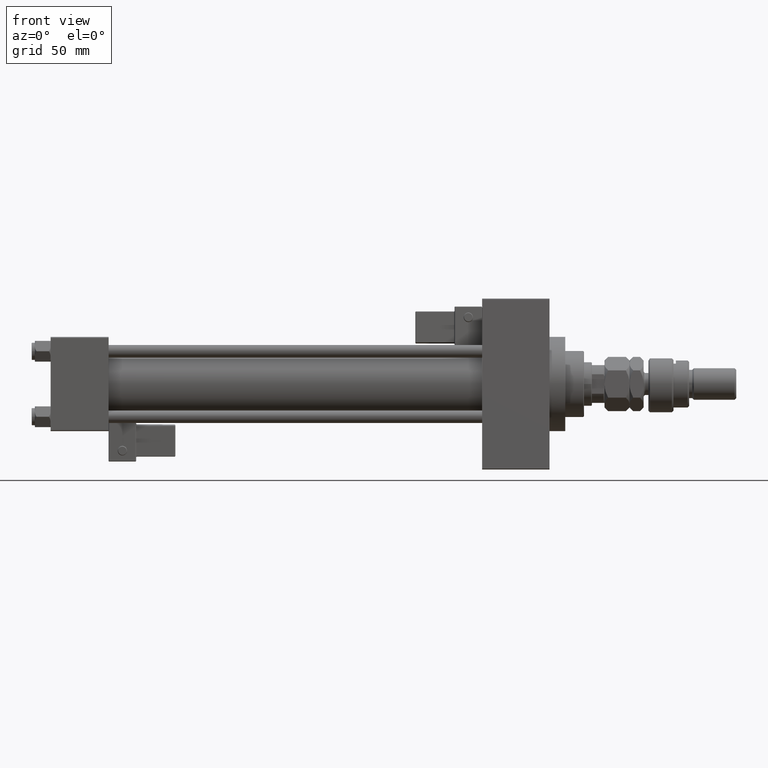
[diagram: clean part render]
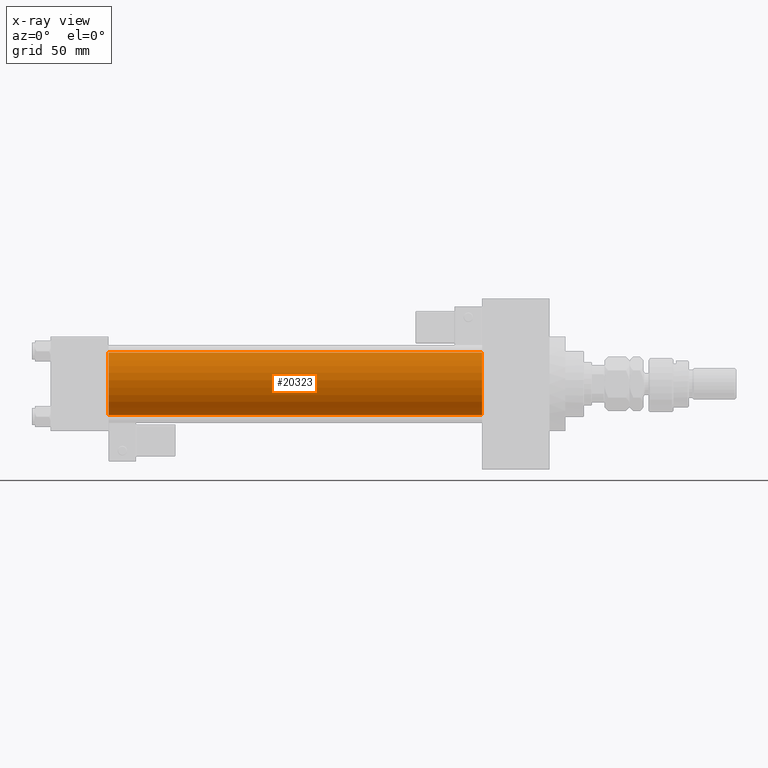
[diagram: x-ray — body ghosted, one internal face saturated and labeled with its STEP entity id]
A machine part, front view, then the same camera in x-ray: the body is ghosted and one INTERNAL B-rep face — a face not visible from any outside direction — is saturated and labeled: STEP entity #20323.
In plain terms, the highlighted cylindrical surface (edge-blend (fillet) strip) has radius 20 mm, axis along (-1, -0, -0).
Its self-contained STEP definition (entity closure, byte-faithful):
#513 = DIRECTION ( 'NONE',  ( 0.000000000000000000, 0.000000000000000000, -1.000000000000000000 ) ) ;
#2042 = VECTOR ( 'NONE', #23881, 1000.000000000000000 ) ;
#4111 = ORIENTED_EDGE ( 'NONE', *, *, #17319, .F. ) ;
#5649 = DIRECTION ( 'NONE',  ( -1.000000000000000000, -0.000000000000000000, -0.000000000000000000 ) ) ;
#7567 = VERTEX_POINT ( 'NONE', #19151 ) ;
#7914 = CARTESIAN_POINT ( 'NONE',  ( 37.00000000000000000, -1.527916156705042519E-16, -20.00000000000000000 ) ) ;
#8869 = CARTESIAN_POINT ( 'NONE',  ( 274.9999999999999432, -1.527916156705042519E-16, -20.00000000000000000 ) ) ;
#8900 = DIRECTION ( 'NONE',  ( 1.000000000000000000, 0.000000000000000000, 0.000000000000000000 ) ) ;
#9616 = EDGE_LOOP ( 'NONE', ( #34664, #23915, #16744, #4111 ) ) ;
#11362 = CARTESIAN_POINT ( 'NONE',  ( 274.9999999999999432, -1.527916156705042519E-16, -20.00000000000000000 ) ) ;
#11471 = AXIS2_PLACEMENT_3D ( 'NONE', #30118, #5649, #38087 ) ;
#15145 = CARTESIAN_POINT ( 'NONE',  ( 274.9999999999999432, -2.602085213965210642E-15, 20.00000000000000000 ) ) ;
#16744 = ORIENTED_EDGE ( 'NONE', *, *, #27274, .F. ) ;
#17319 = EDGE_CURVE ( 'NONE', #7567, #45956, #52597, .T. ) ;
#19151 = CARTESIAN_POINT ( 'NONE',  ( 274.9999999999999432, -2.602085213965210642E-15, 20.00000000000000000 ) ) ;
#20323 = ADVANCED_FACE ( 'NONE', ( #25868 ), #50569, .F. ) ;
#21359 = EDGE_CURVE ( 'NONE', #7567, #50164, #22593, .T. ) ;
#22493 = CARTESIAN_POINT ( 'NONE',  ( 37.00000000000000000, -2.602085213965210642E-15, 20.00000000000000000 ) ) ;
#22593 = CIRCLE ( 'NONE', #51437, 20.00000000000000000 ) ;
#23881 = DIRECTION ( 'NONE',  ( -1.000000000000000000, -0.000000000000000000, -0.000000000000000000 ) ) ;
#23915 = ORIENTED_EDGE ( 'NONE', *, *, #52481, .T. ) ;
#25868 = FACE_OUTER_BOUND ( 'NONE', #9616, .T. ) ;
#27274 = EDGE_CURVE ( 'NONE', #45956, #30477, #41621, .T. ) ;
#28124 = LINE ( 'NONE', #11362, #2042 ) ;
#30118 = CARTESIAN_POINT ( 'NONE',  ( 274.9999999999999432, -2.602085213965210642E-15, 0.000000000000000000 ) ) ;
#30477 = VERTEX_POINT ( 'NONE', #7914 ) ;
#30597 = AXIS2_PLACEMENT_3D ( 'NONE', #37192, #36413, #513 ) ;
#32752 = VECTOR ( 'NONE', #44100, 1000.000000000000000 ) ;
#34664 = ORIENTED_EDGE ( 'NONE', *, *, #21359, .T. ) ;
#36413 = DIRECTION ( 'NONE',  ( 1.000000000000000000, 0.000000000000000000, 0.000000000000000000 ) ) ;
#37192 = CARTESIAN_POINT ( 'NONE',  ( 37.00000000000000000, -2.602085213965210642E-15, 0.000000000000000000 ) ) ;
#37613 = DIRECTION ( 'NONE',  ( 0.000000000000000000, 0.000000000000000000, -1.000000000000000000 ) ) ;
#38087 = DIRECTION ( 'NONE',  ( 0.000000000000000000, 0.000000000000000000, 1.000000000000000000 ) ) ;
#41621 = CIRCLE ( 'NONE', #30597, 20.00000000000000000 ) ;
#44100 = DIRECTION ( 'NONE',  ( -1.000000000000000000, -0.000000000000000000, -0.000000000000000000 ) ) ;
#45323 = CARTESIAN_POINT ( 'NONE',  ( 274.9999999999999432, -2.602085213965210642E-15, 0.000000000000000000 ) ) ;
#45956 = VERTEX_POINT ( 'NONE', #22493 ) ;
#50164 = VERTEX_POINT ( 'NONE', #8869 ) ;
#50569 = CYLINDRICAL_SURFACE ( 'NONE', #11471, 20.00000000000000000 ) ;
#51437 = AXIS2_PLACEMENT_3D ( 'NONE', #45323, #8900, #37613 ) ;
#52481 = EDGE_CURVE ( 'NONE', #50164, #30477, #28124, .T. ) ;
#52597 = LINE ( 'NONE', #15145, #32752 ) ;